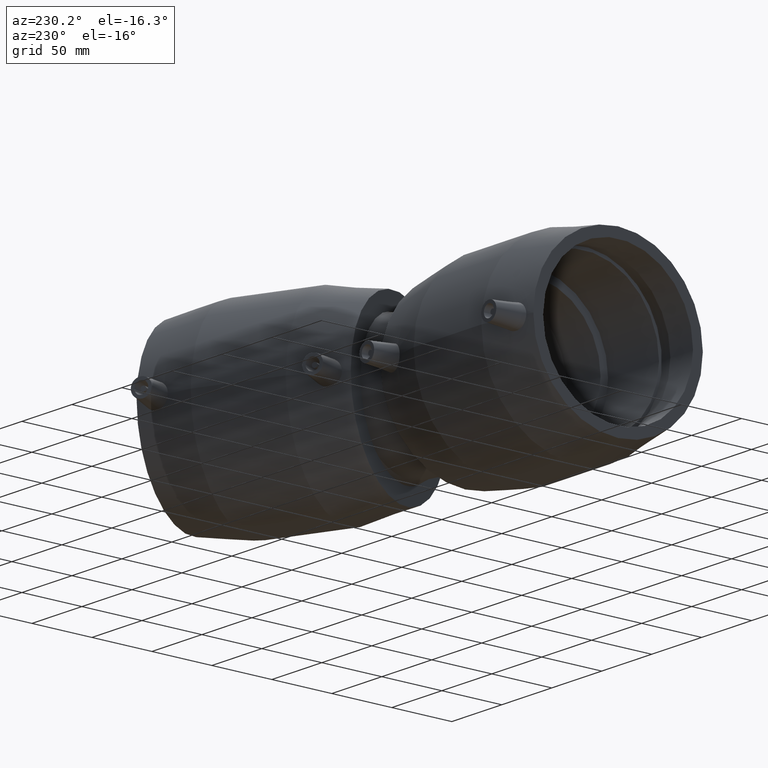
[diagram: clean part render]
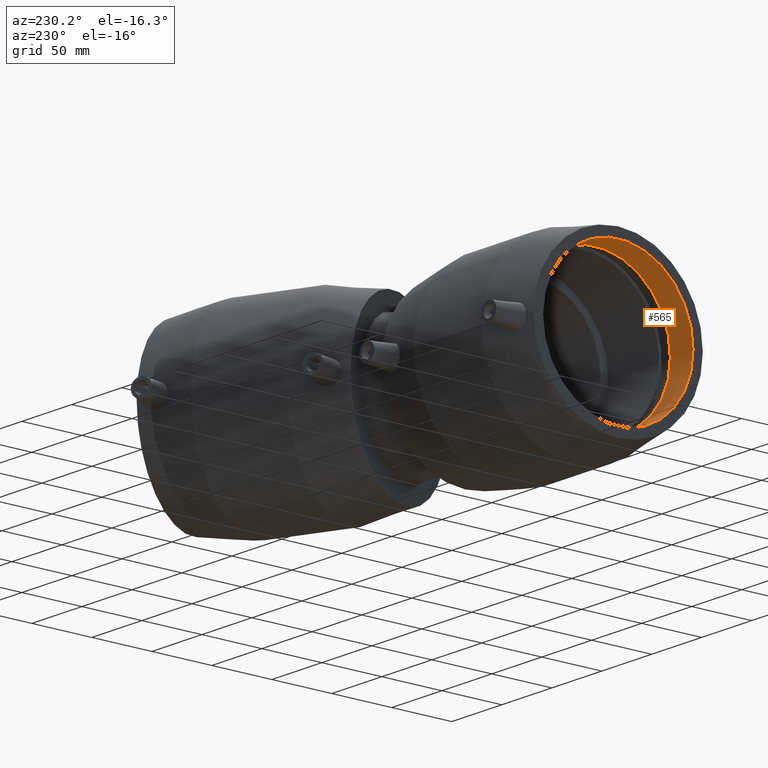
[diagram: same view with one face highlighted and labeled with its STEP entity id]
A machine part, auxiliary view. The second image highlights one B-rep face of the part: STEP entity #565.
In plain terms, the highlighted cylindrical surface (bore or boss wall) has radius 62.5 mm, axis along (1, 0, 0).
Its self-contained STEP definition (entity closure, byte-faithful):
#54=CYLINDRICAL_SURFACE('',#642,62.5);
#86=FACE_BOUND('',#211,.T.);
#137=FACE_OUTER_BOUND('',#210,.T.);
#210=EDGE_LOOP('',(#483));
#211=EDGE_LOOP('',(#484));
#295=CIRCLE('',#641,62.5);
#296=CIRCLE('',#643,62.5);
#346=VERTEX_POINT('',#1259);
#347=VERTEX_POINT('',#1262);
#401=EDGE_CURVE('',#346,#346,#295,.T.);
#402=EDGE_CURVE('',#347,#347,#296,.T.);
#483=ORIENTED_EDGE('',*,*,#402,.F.);
#484=ORIENTED_EDGE('',*,*,#401,.T.);
#565=ADVANCED_FACE('',(#137,#86),#54,.F.);
#641=AXIS2_PLACEMENT_3D('',#1260,#789,#790);
#642=AXIS2_PLACEMENT_3D('',#1261,#791,#792);
#643=AXIS2_PLACEMENT_3D('',#1263,#793,#794);
#789=DIRECTION('center_axis',(1.,1.83697019872103E-16,0.));
#790=DIRECTION('ref_axis',(0.,0.,-1.));
#791=DIRECTION('center_axis',(1.,1.83697019872103E-16,0.));
#792=DIRECTION('ref_axis',(-1.79891298841636E-16,1.,0.));
#793=DIRECTION('center_axis',(1.,1.83697019872103E-16,0.));
#794=DIRECTION('ref_axis',(0.,0.,-1.));
#1259=CARTESIAN_POINT('',(-53.7333333333333,62.5,0.));
#1260=CARTESIAN_POINT('Origin',(-53.7333333333333,4.163799117101E-15,0.));
#1261=CARTESIAN_POINT('Origin',(-65.0666666666667,2.0818995585505E-15,0.));
#1262=CARTESIAN_POINT('',(-76.4,62.5,0.));
#1263=CARTESIAN_POINT('Origin',(-76.4,-4.93038065763132E-31,0.));